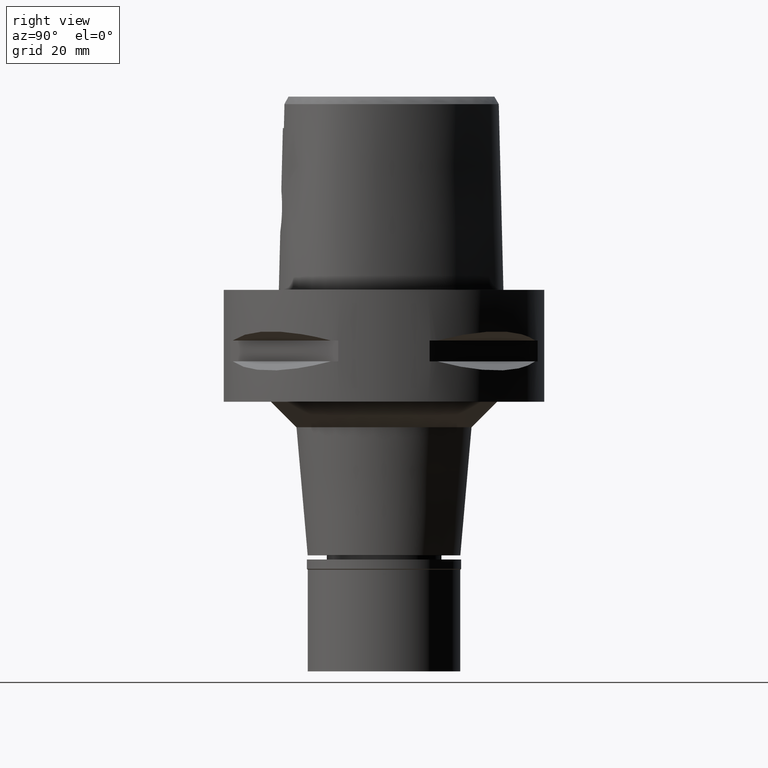
[diagram: clean part render]
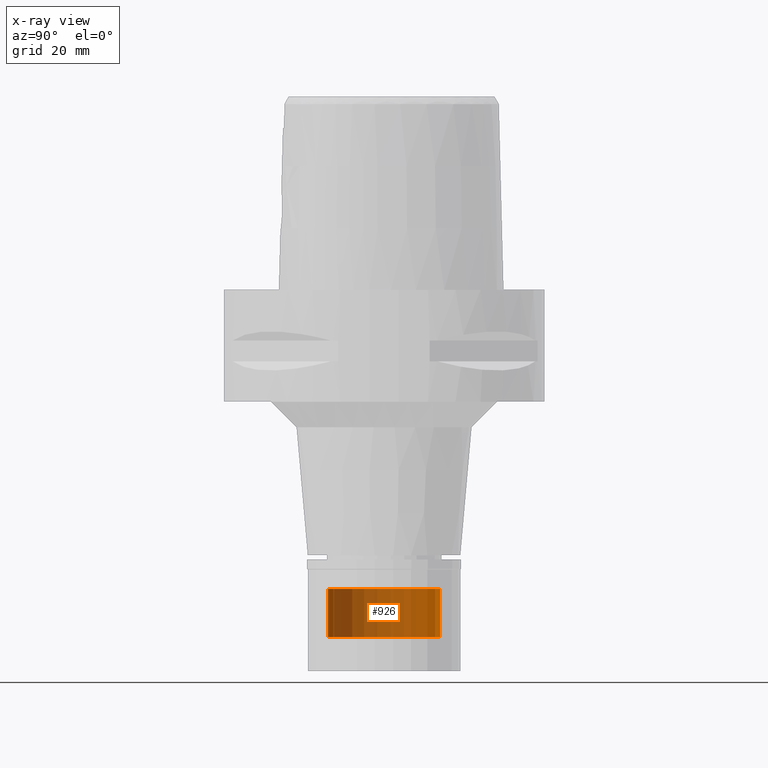
[diagram: x-ray — body ghosted, one internal face saturated and labeled with its STEP entity id]
A machine part, right view, then the same camera in x-ray: the body is ghosted and one INTERNAL B-rep face — a face not visible from any outside direction — is saturated and labeled: STEP entity #926.
In plain terms, the highlighted cylindrical surface (partial cylindrical patch) has radius 11 mm, axis along (0, 0, -1).
Its self-contained STEP definition (entity closure, byte-faithful):
#184 = VERTEX_POINT ( 'NONE', #2387 ) ;
#387 = CARTESIAN_POINT ( 'NONE',  ( 0.0000000000000000000, -11.00000000000000000, -68.29999999999999716 ) ) ;
#658 = CARTESIAN_POINT ( 'NONE',  ( 0.0000000000000000000, 11.00000000000000000, -58.79999999999999716 ) ) ;
#717 = DIRECTION ( 'NONE',  ( 0.0000000000000000000, 0.0000000000000000000, -1.000000000000000000 ) ) ;
#789 = CARTESIAN_POINT ( 'NONE',  ( 0.0000000000000000000, 1.266468487337999962E-14, -68.29999999999999716 ) ) ;
#916 = CIRCLE ( 'NONE', #3033, 11.00000000000000000 ) ;
#926 = ADVANCED_FACE ( 'NONE', ( #2832 ), #2878, .T. ) ;
#933 = CARTESIAN_POINT ( 'NONE',  ( 0.0000000000000000000, -11.00000000000000000, -58.79999999999999716 ) ) ;
#967 = DIRECTION ( 'NONE',  ( 0.0000000000000000000, -1.000000000000000000, 0.0000000000000000000 ) ) ;
#1021 = AXIS2_PLACEMENT_3D ( 'NONE', #2087, #4336, #967 ) ;
#1058 = CARTESIAN_POINT ( 'NONE',  ( 0.0000000000000000000, 1.266468487337999962E-14, -58.79999999999999716 ) ) ;
#1075 = VECTOR ( 'NONE', #4427, 1000.000000000000000 ) ;
#1080 = DIRECTION ( 'NONE',  ( 0.0000000000000000000, 0.0000000000000000000, 1.000000000000000000 ) ) ;
#1257 = ORIENTED_EDGE ( 'NONE', *, *, #3515, .F. ) ;
#1348 = DIRECTION ( 'NONE',  ( 0.0000000000000000000, 0.0000000000000000000, -1.000000000000000000 ) ) ;
#1617 = AXIS2_PLACEMENT_3D ( 'NONE', #789, #1080, #3294 ) ;
#1787 = LINE ( 'NONE', #3285, #1075 ) ;
#2001 = EDGE_CURVE ( 'NONE', #184, #3818, #3111, .T. ) ;
#2087 = CARTESIAN_POINT ( 'NONE',  ( 0.0000000000000000000, 1.266468487337999962E-14, 3.415000000000000036 ) ) ;
#2215 = EDGE_CURVE ( 'NONE', #2380, #2746, #916, .T. ) ;
#2380 = VERTEX_POINT ( 'NONE', #3514 ) ;
#2387 = CARTESIAN_POINT ( 'NONE',  ( 0.0000000000000000000, 11.00000000000000000, -68.29999999999999716 ) ) ;
#2719 = ORIENTED_EDGE ( 'NONE', *, *, #2215, .T. ) ;
#2746 = VERTEX_POINT ( 'NONE', #658 ) ;
#2804 = VECTOR ( 'NONE', #1348, 1000.000000000000000 ) ;
#2816 = EDGE_LOOP ( 'NONE', ( #3927, #1257, #2719, #3126 ) ) ;
#2832 = FACE_OUTER_BOUND ( 'NONE', #2816, .T. ) ;
#2878 = CYLINDRICAL_SURFACE ( 'NONE', #1021, 11.00000000000000000 ) ;
#3033 = AXIS2_PLACEMENT_3D ( 'NONE', #1058, #717, #3341 ) ;
#3111 = CIRCLE ( 'NONE', #1617, 11.00000000000000000 ) ;
#3126 = ORIENTED_EDGE ( 'NONE', *, *, #3922, .T. ) ;
#3285 = CARTESIAN_POINT ( 'NONE',  ( 0.0000000000000000000, 11.00000000000000000, -58.79999999999999716 ) ) ;
#3294 = DIRECTION ( 'NONE',  ( 0.0000000000000000000, 1.000000000000000000, 0.0000000000000000000 ) ) ;
#3341 = DIRECTION ( 'NONE',  ( 0.0000000000000000000, -1.000000000000000000, 0.0000000000000000000 ) ) ;
#3514 = CARTESIAN_POINT ( 'NONE',  ( 0.0000000000000000000, -11.00000000000000000, -58.79999999999999716 ) ) ;
#3515 = EDGE_CURVE ( 'NONE', #2380, #3818, #3964, .T. ) ;
#3818 = VERTEX_POINT ( 'NONE', #387 ) ;
#3922 = EDGE_CURVE ( 'NONE', #2746, #184, #1787, .T. ) ;
#3927 = ORIENTED_EDGE ( 'NONE', *, *, #2001, .T. ) ;
#3964 = LINE ( 'NONE', #933, #2804 ) ;
#4336 = DIRECTION ( 'NONE',  ( 0.0000000000000000000, 0.0000000000000000000, -1.000000000000000000 ) ) ;
#4427 = DIRECTION ( 'NONE',  ( 0.0000000000000000000, 0.0000000000000000000, -1.000000000000000000 ) ) ;